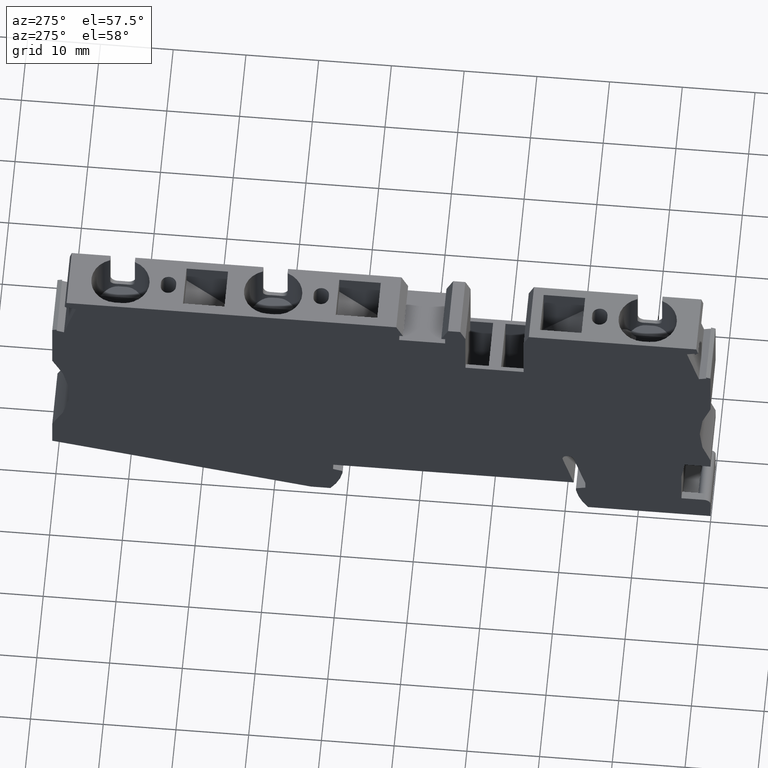
[diagram: clean part render]
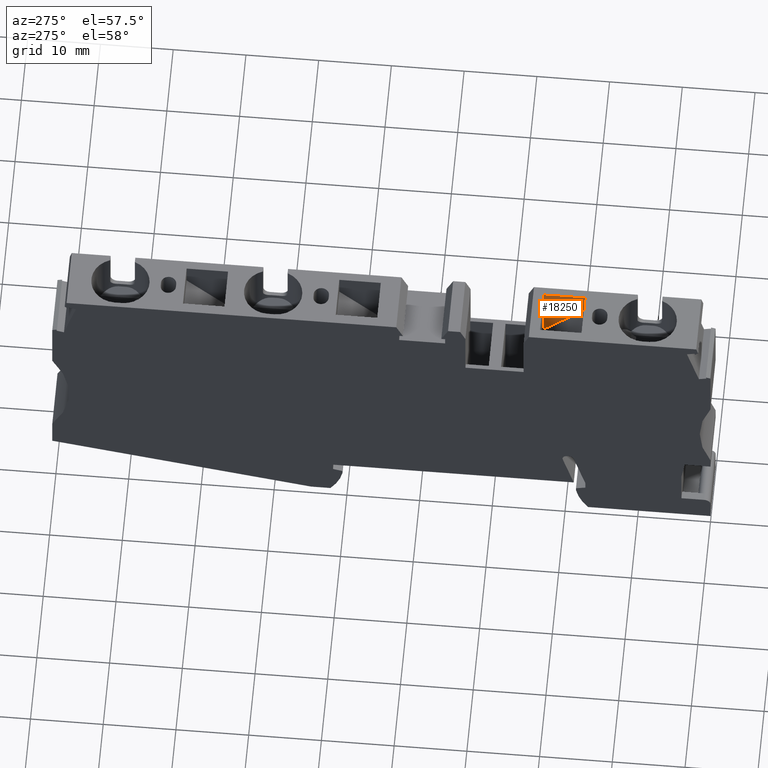
[diagram: same view with one face highlighted and labeled with its STEP entity id]
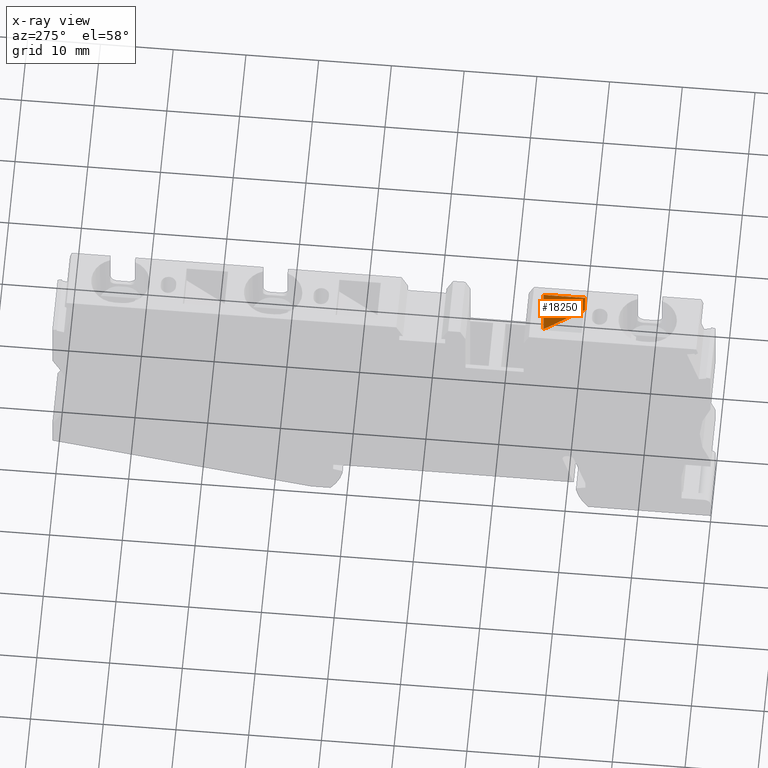
[diagram: x-ray of the same camera — body ghosted, the highlighted face saturated]
A machine part, auxiliary view. The second image highlights one B-rep face of the part: STEP entity #18250.
The next image is the same camera in x-ray: the body ghosted, the highlighted face saturated — about 0% of this face is hidden behind the body in this view.
In plain terms, the highlighted planar face has unit normal (-1, 0, 0).
Its self-contained STEP definition (entity closure, byte-faithful):
#15910=CARTESIAN_POINT('',(-19.5576683774103,-2.19999999998686,52.52));
#15920=DIRECTION('',(1.,0.,0.));
#15930=VECTOR('',#15920,1.);
#15940=LINE('',#15910,#15930);
#15950=CARTESIAN_POINT('',(-14.9178327783245,-2.19999999998686,52.52));
#15960=VERTEX_POINT('',#15950);
#15970=CARTESIAN_POINT('',(-9.2178327783245,-2.19999999998686,52.52));
#15980=VERTEX_POINT('',#15970);
#15990=EDGE_CURVE('',#15960,#15980,#15940,.T.);
#17370=CARTESIAN_POINT('',(-9.21783277832449,-10.910050506327,52.52));
#17380=VERTEX_POINT('',#17370);
#17410=CARTESIAN_POINT('',(-16.9278832846633,-3.19999999998817,52.52));
#17420=DIRECTION('',(0.707106781186548,-0.707106781186548,0.));
#17430=VECTOR('',#17420,1.);
#17440=LINE('',#17410,#17430);
#17450=CARTESIAN_POINT('',(-14.9178327783245,-5.210050506327,52.52));
#17460=VERTEX_POINT('',#17450);
#17470=EDGE_CURVE('',#17460,#17380,#17440,.T.);
#17740=CARTESIAN_POINT('',(-14.9178327783245,-3.19999999998817,52.52));
#17750=DIRECTION('',(0.,-1.,0.));
#17760=VECTOR('',#17750,1.);
#17770=LINE('',#17740,#17760);
#17780=EDGE_CURVE('',#15960,#17460,#17770,.T.);
#17950=CARTESIAN_POINT('',(-9.2178327783245,-3.19999999998817,52.52));
#17960=DIRECTION('',(0.,1.,0.));
#17970=VECTOR('',#17960,1.);
#17980=LINE('',#17950,#17970);
#17990=EDGE_CURVE('',#17380,#15980,#17980,.T.);
#18140=CARTESIAN_POINT('',(-27.7880075762593,-7.10051607027773,52.52));
#18150=DIRECTION('',(0.,0.,-1.));
#18160=DIRECTION('',(-1.,0.,0.));
#18170=AXIS2_PLACEMENT_3D('',#18140,#18150,#18160);
#18180=PLANE('',#18170);
#18190=ORIENTED_EDGE('',*,*,#17780,.F.);
#18200=ORIENTED_EDGE('',*,*,#17470,.F.);
#18210=ORIENTED_EDGE('',*,*,#17990,.F.);
#18220=ORIENTED_EDGE('',*,*,#15990,.T.);
#18230=EDGE_LOOP('',(#18220,#18210,#18200,#18190));
#18240=FACE_OUTER_BOUND('',#18230,.T.);
#18250=ADVANCED_FACE('',(#18240),#18180,.T.);